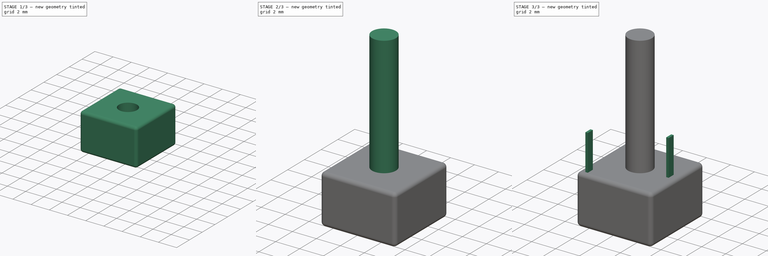
[diagram: build sequence overview — one tinted view per stage of 3, left to right]
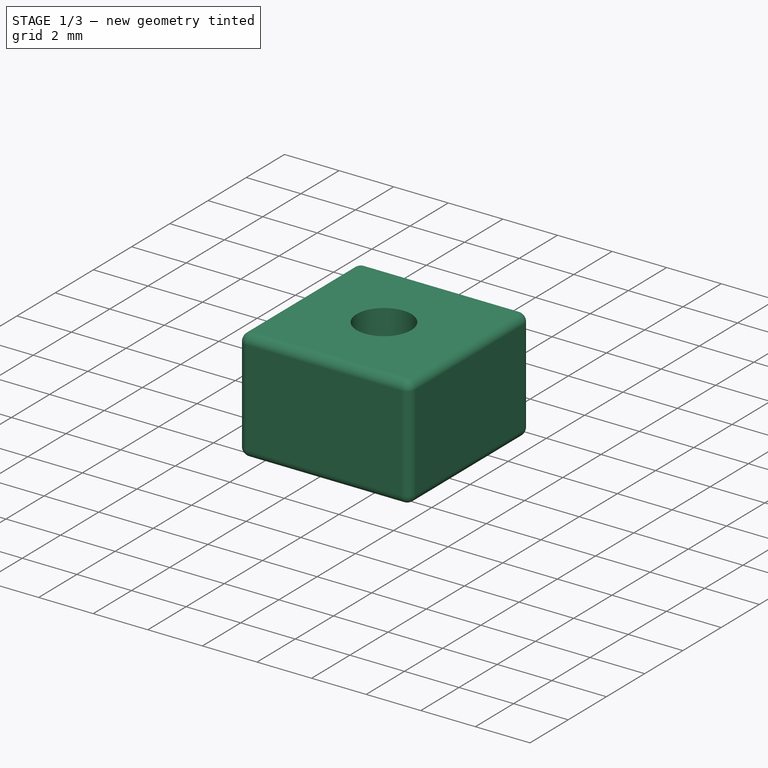
[diagram: stage 1 of 3 — iso view after this stage's code; geometry added in this stage tinted green]
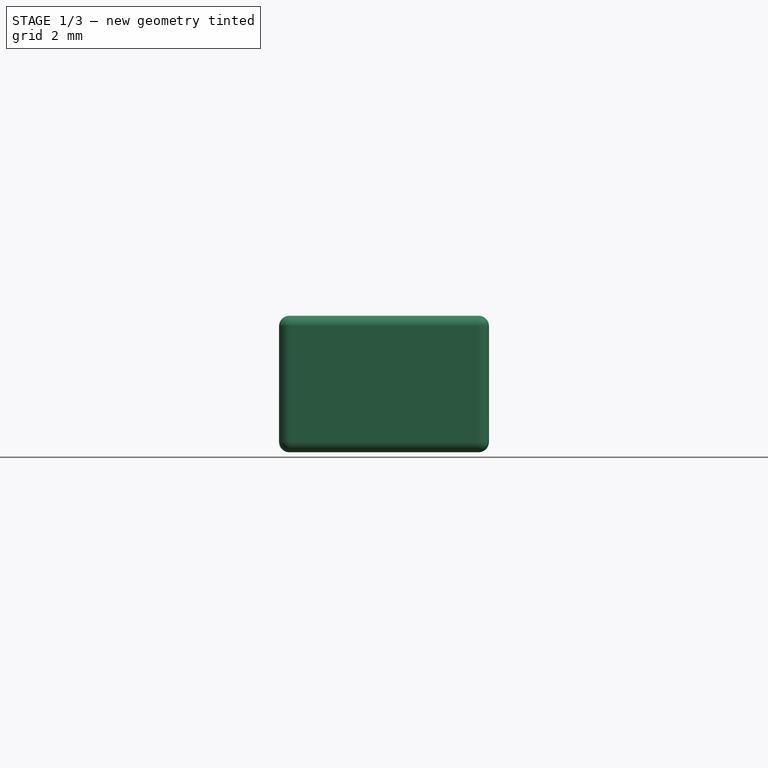
[diagram: stage 1 of 3 — front view after this stage's code; geometry added in this stage tinted green]
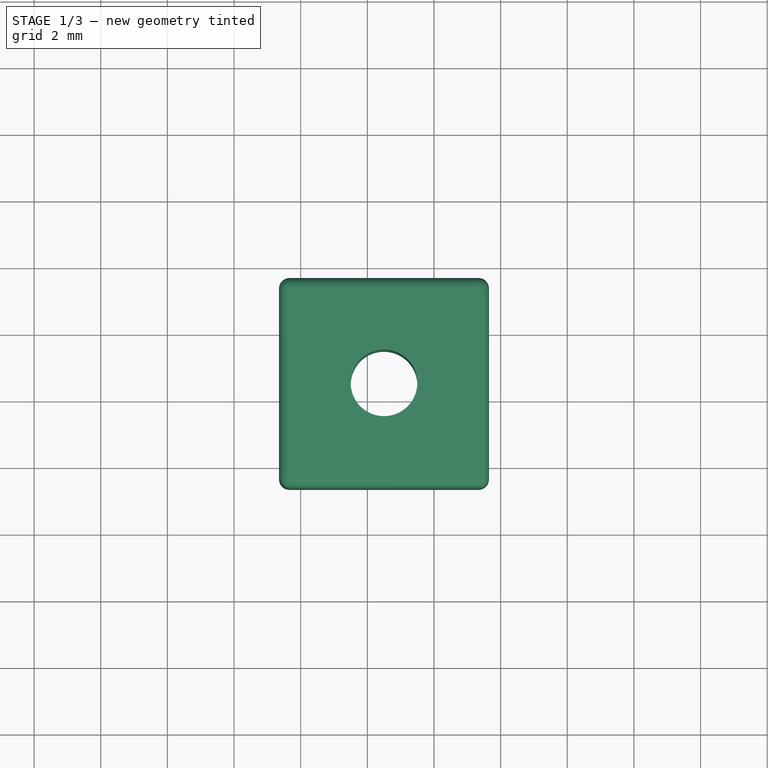
[diagram: stage 1 of 3 — top view after this stage's code; geometry added in this stage tinted green]
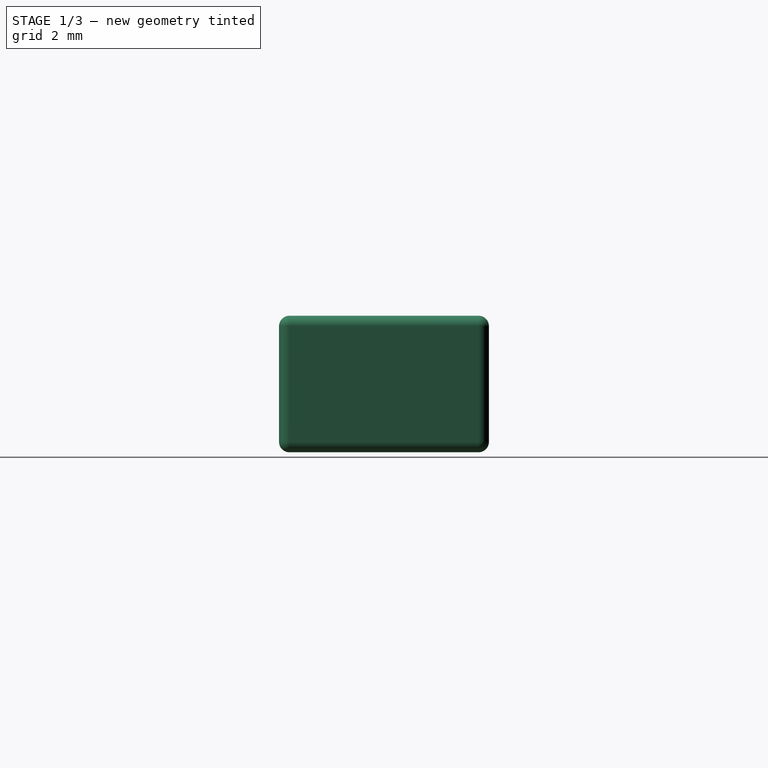
[diagram: stage 1 of 3 — right view after this stage's code; geometry added in this stage tinted green]
FCSTD DOCUMENT  (FreeCAD 0.16R6703 (Git))
Label: Potentiometer_Trimmer_ACP_CA6v_Horizontal_MountLS
License: All rights reserved
LicenseURL: http://en.wikipedia.org/wiki/All_rights_reserved
objects: Sketcher::SketchObject×4, PartDesign::Pad×4, Spreadsheet::Sheet×1, PartDesign::Fillet×1
note: 13 computed .brp shape members not serialized (recipe doc carries the construction recipe); baked Part::Feature solids carry a one-line shape summary decoded from their .brp

FEATURE [Sketcher::SketchObject] Sketch
  Placement = pos=(0,5,-2) rot=(0,0,1;0rad)
  expr: Constraints[15] = (Spreadsheet.hbody_fab - Spreadsheet.rmy * 2) / 2
  expr: Constraints[13] = Spreadsheet.wbody_fab
  expr: Placement.Base.z = -2
  expr: Placement.Base.y = 2 * Spreadsheet.rmy
  expr: Constraints[4] = Spreadsheet.rmy
  expr: Constraints[16] = (Spreadsheet.wbody_fab - Spreadsheet.rmx) / 2
  expr: Constraints[3] = Spreadsheet.clbody_fab
  expr: Constraints[14] = Spreadsheet.hbody_fab
  expr: Constraints[2] = Spreadsheet.dscrew / 2
  expr: Constraints[0] = Spreadsheet.cdbody_fab / 2
  sketch-geometry (6):
    g0: Circle [constr] CenterX=2.5 CenterY=-2.5 CenterZ=0 NormalX=0 NormalY=0 NormalZ=1 Radius=0
    g1: Circle CenterX=2.5 CenterY=-2.5 CenterZ=0 NormalX=0 NormalY=0 NormalZ=1 Radius=1
    g2: LineSegment StartX=-0.65 StartY=0.65 StartZ=0 EndX=5.65 EndY=0.65 EndZ=0
    g3: LineSegment StartX=5.65 StartY=0.65 StartZ=0 EndX=5.65 EndY=-5.65 EndZ=0
    g4: LineSegment StartX=5.65 StartY=-5.65 StartZ=0 EndX=-0.65 EndY=-5.65 EndZ=0
    g5: LineSegment StartX=-0.65 StartY=-5.65 StartZ=0 EndX=-0.65 EndY=0.65 EndZ=0
  constraints (17):
    c: Radius(g0) = 0
    c: Coincident(g1,g0)
    c: Radius(g1) = 1
    c: DistanceX(g-1,g0) = 2.5
    c: DistanceY(g0,g-1) = 2.5
    c: Coincident(g2,g3)
    c: Coincident(g3,g4)
    c: Coincident(g4,g5)
    c: Coincident(g5,g2)
    c: Horizontal(g2)
    c: Horizontal(g4)
    c: Vertical(g3)
    c: Vertical(g5)
    c: DistanceX(g2,g2) = 6.3
    c: DistanceY(g5,g5) = 6.3
    c: DistanceY(g-1,g2) = 0.65
    c: DistanceX(g2,g-1) = 0.65
FEATURE [PartDesign::Pad] Pad
  Length = 4.1
  Length2 = 100
  Placement = pos=(0,5,-2) rot=(0,0,1;0rad)
  Reversed = true
  Sketch = -> Sketch
  Type = 0
  expr: Length = Spreadsheet.height - 0.5
FEATURE [PartDesign::Fillet] Fillet
  Base = -> Pad [Edge9,Edge11,Edge3,Edge6,Edge2,Edge5,Edge8,Edge10,Edge7,Edge12,Edge4,Edge1]
  Placement = pos=(0,5,-2) rot=(0,0,1;0rad)
  Radius = 0.315
  expr: Radius = Spreadsheet.wbody_fab * 0.05
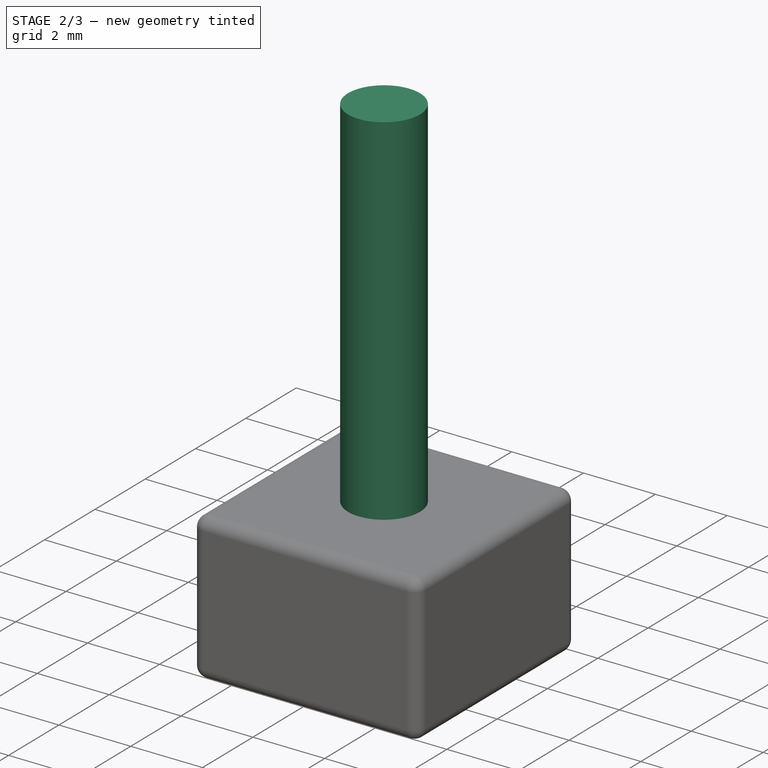
[diagram: stage 2 of 3 — iso view after this stage's code; geometry added in this stage tinted green]
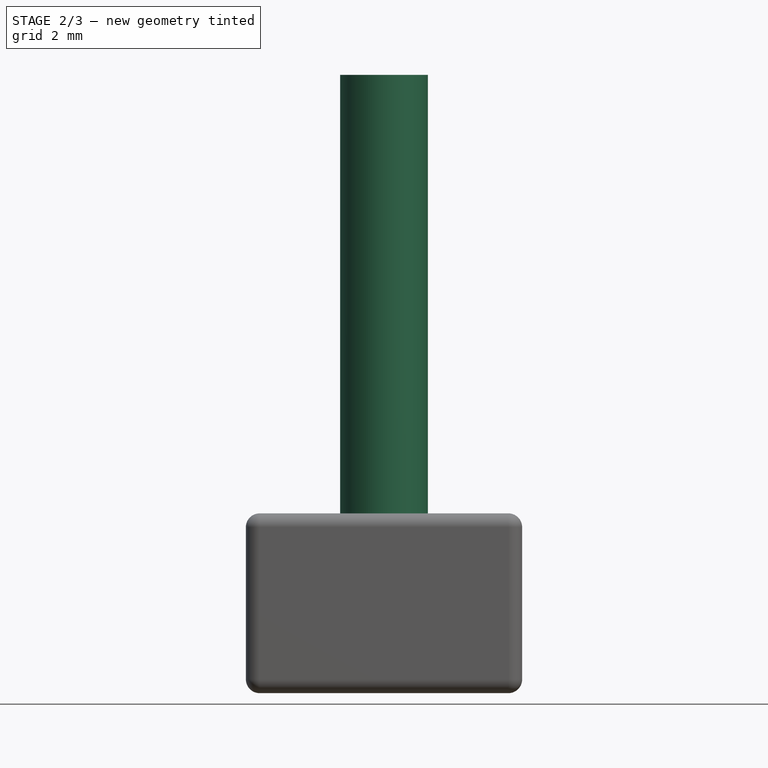
[diagram: stage 2 of 3 — front view after this stage's code; geometry added in this stage tinted green]
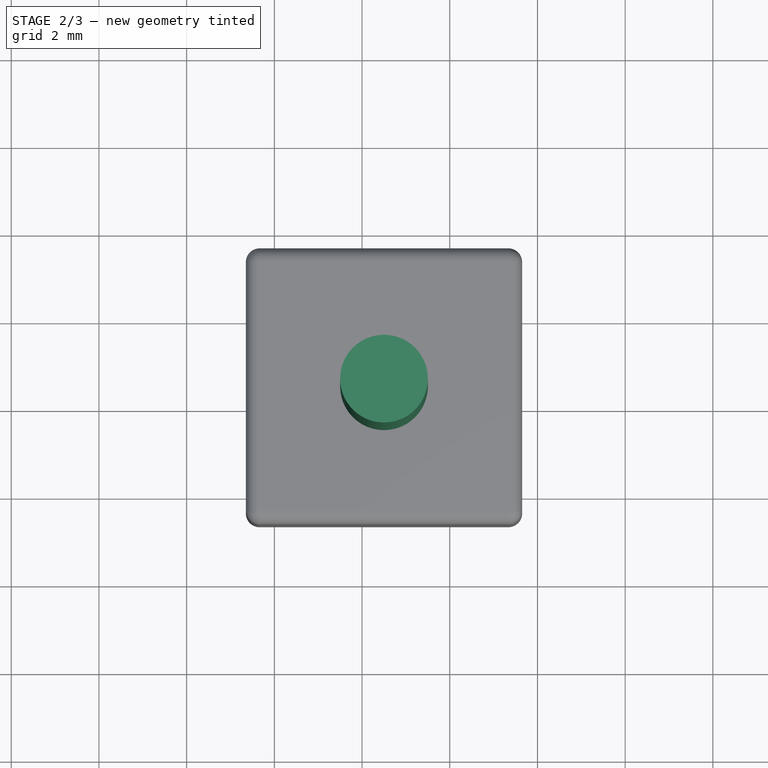
[diagram: stage 2 of 3 — top view after this stage's code; geometry added in this stage tinted green]
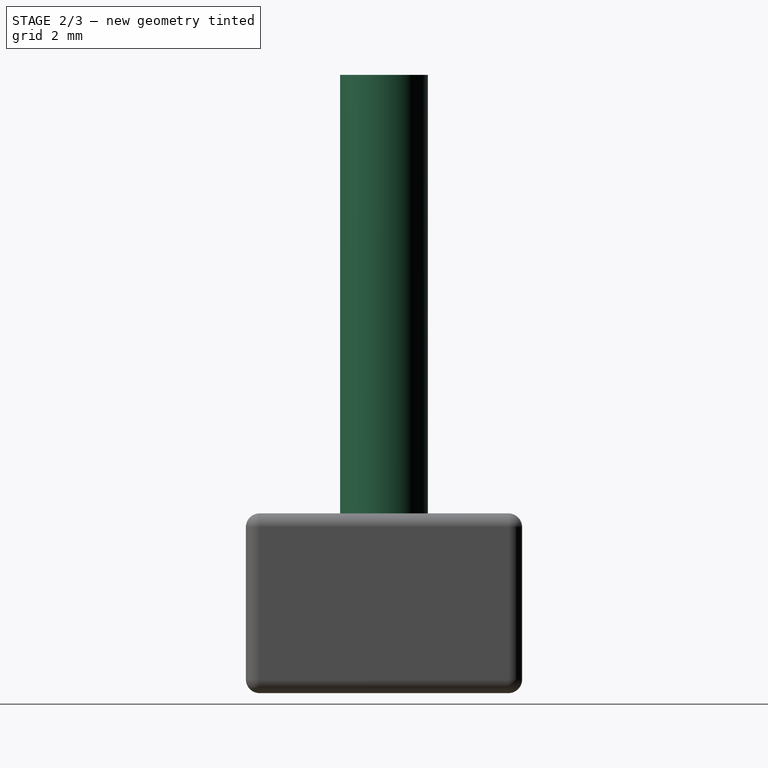
[diagram: stage 2 of 3 — right view after this stage's code; geometry added in this stage tinted green]
FEATURE [Sketcher::SketchObject] Sketch006
  Placement = pos=(0,5,-2) rot=(0,0,1;0rad)
  expr: Constraints[0] = Spreadsheet.dscrew / 2
  expr: Constraints[2] = Spreadsheet.clbody_fab
  expr: Constraints[1] = Spreadsheet.rmy
  expr: Placement.Base.y = 2 * Spreadsheet.rmy
  sketch-geometry (1):
    g0: Circle CenterX=2.5 CenterY=-2.5 CenterZ=0 NormalX=0 NormalY=0 NormalZ=1 Radius=1
  constraints (3):
    c: Radius(g0) = 1
    c: DistanceY(g0,g-1) = 2.5
    c: DistanceX(g-1,g0) = 2.5
FEATURE [PartDesign::Pad] Pad005
  Length = 10
  Length2 = 100
  Placement = pos=(0,5,-2) rot=(0,0,1;0rad)
  Sketch = -> Sketch006
  Type = 0
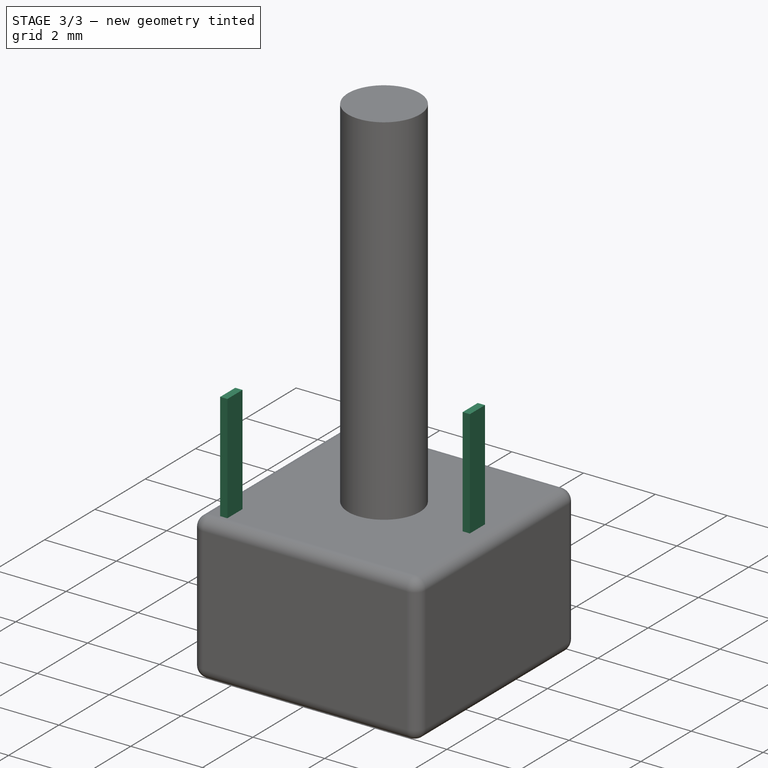
[diagram: stage 3 of 3 — iso view after this stage's code; geometry added in this stage tinted green]
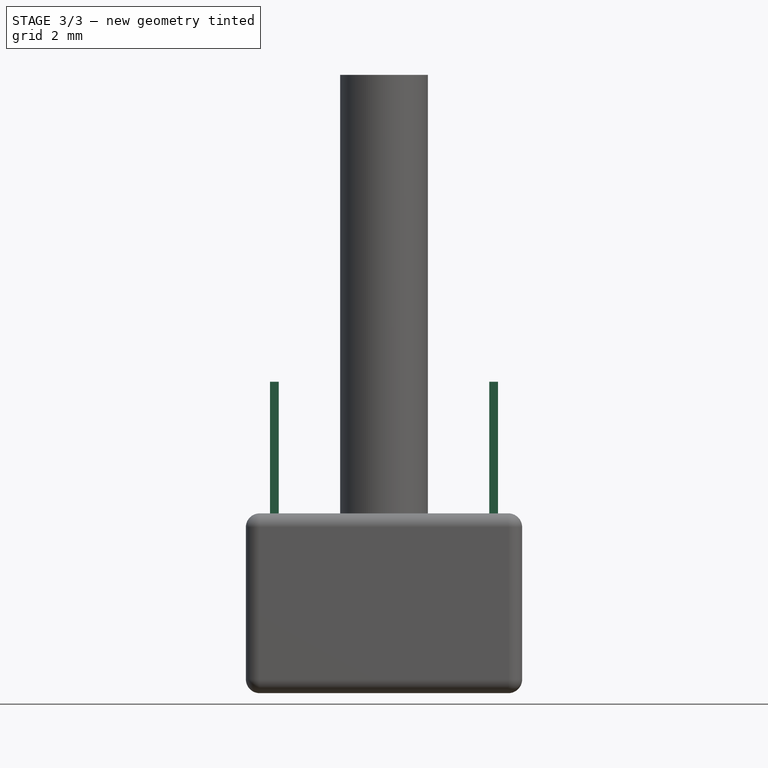
[diagram: stage 3 of 3 — front view after this stage's code; geometry added in this stage tinted green]
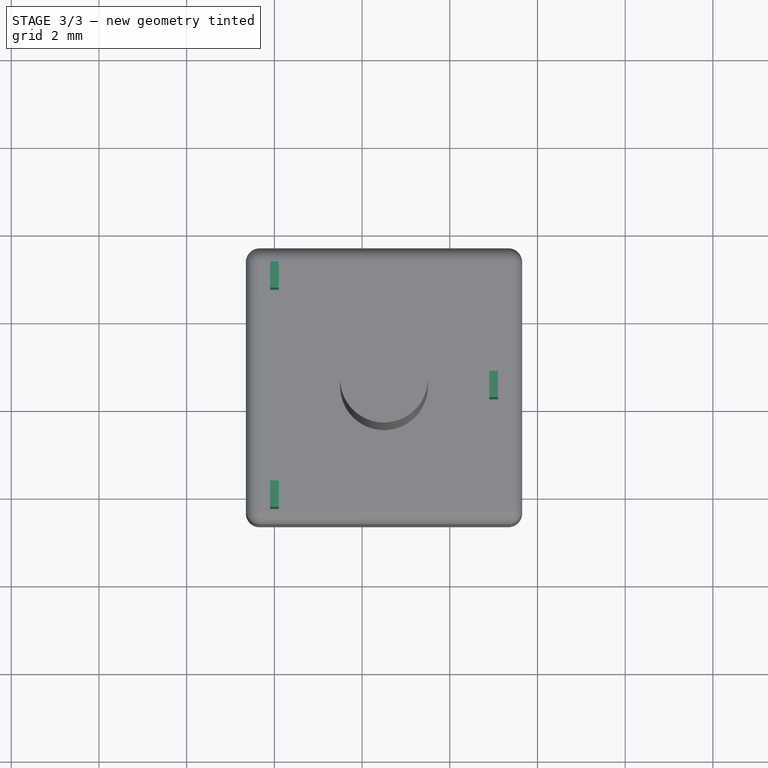
[diagram: stage 3 of 3 — top view after this stage's code; geometry added in this stage tinted green]
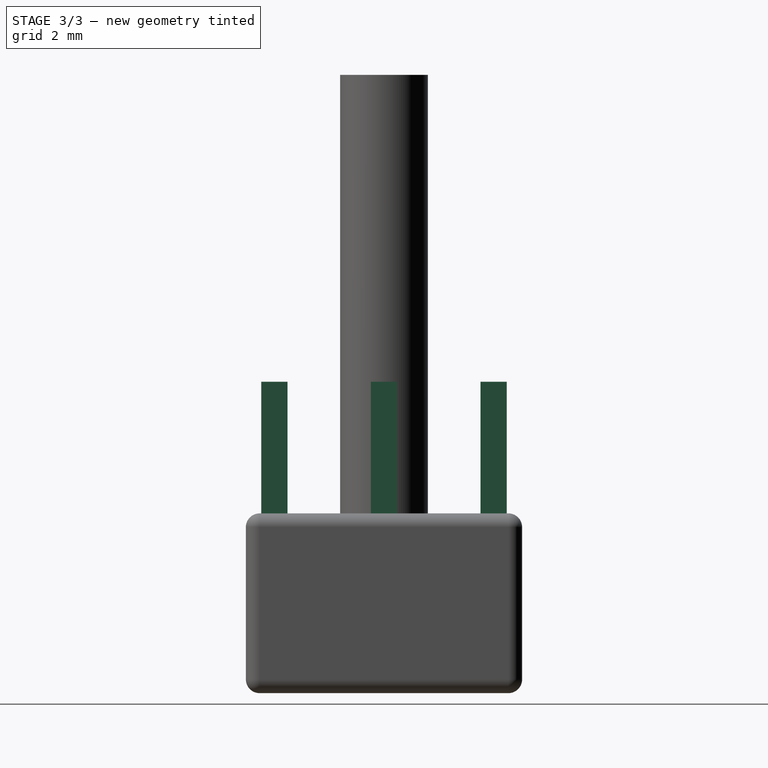
[diagram: stage 3 of 3 — right view after this stage's code; geometry added in this stage tinted green]
FEATURE [Spreadsheet::Sheet] Spreadsheet
  cells = A1=var lbody_fab = ; B1(lbody_fab)=-0.65; A2=var tbody_fab = ; B2(tbody_fab)=4.35; A3=var wbody_fab = ; B3(wbody_fab)=6.3; A4=var hbody_fab = ; B4(hbody_fab)=6.3; A5=var clbody_fab = ; B5(clbody_fab)=2.5; A6=var ctbody_fab = ; B6(ctbody_fab)=7.5; A7=var cdbody_fab = ; B7(cdbody_fab)=0; A8=var dscrew = ; B8(dscrew)=2; A9=var dshaft = ; B9(dshaft)=1.8; A10=var rmx = ; B10(rmx)=5; A11=var rmy = ; B11(rmy)=2.5; A12=var padx = ; B12(padx)=0; A13=var pady = ; B13(pady)=5; A14=var d_wire = ; B14(d_wire)=0.6000000000000001; A15=var height = ; B15(height)=4.6; A16=var mhpadx = ; B16(mhpadx)=2.5; A17=var mhpady = ; B17(mhpady)=2.5; A18=var mh_rmx = ; B18(mh_rmx)=0; A19=var mh_rmy = ; B19(mh_rmy)=15; A20=var offsetx = ; B20(offsetx)=0; A21=var offsety = ; B21(offsety)=-5
FEATURE [Sketcher::SketchObject] Sketch003
  Placement = pos=(0,5,0) rot=(0,0,1;0rad)
  expr: Constraints[23] = Spreadsheet.rmy
  expr: Constraints[22] = Spreadsheet.rmx
  expr: Constraints[35] = Spreadsheet.rmy * 2
  expr: Constraints[36] = Spreadsheet.rmy * 2
  expr: Constraints[24] = Spreadsheet.rmy
  expr: Constraints[8] = Spreadsheet.d_wire / 3
  expr: Placement.Base.y = 2 * Spreadsheet.rmy
  expr: Constraints[11] = Spreadsheet.d_wire / 2
  expr: Constraints[21] = Spreadsheet.rmx + Spreadsheet.d_wire / 3
  expr: Constraints[10] = Spreadsheet.d_wire / 6
  expr: Constraints[9] = Spreadsheet.d_wire
  sketch-geometry (13):
    g0: LineSegment StartX=-0.1 StartY=0.3 StartZ=0 EndX=0.1 EndY=0.3 EndZ=0
    g1: LineSegment StartX=0.1 StartY=0.3 StartZ=0 EndX=0.1 EndY=-0.3 EndZ=0
    g2: LineSegment StartX=0.1 StartY=-0.3 StartZ=0 EndX=-0.1 EndY=-0.3 EndZ=0
    g3: LineSegment StartX=-0.1 StartY=-0.3 StartZ=0 EndX=-0.1 EndY=0.3 EndZ=0
    g4: GeomPoint [constr] X=0 Y=0 Z=0
    g5: LineSegment StartX=5.1 StartY=-2.2 StartZ=0 EndX=4.9 EndY=-2.2 EndZ=0
    g6: LineSegment StartX=4.9 StartY=-2.2 StartZ=0 EndX=4.9 EndY=-2.8 EndZ=0
    g7: LineSegment StartX=4.9 StartY=-2.8 StartZ=0 EndX=5.1 EndY=-2.8 EndZ=0
    g8: LineSegment StartX=5.1 StartY=-2.8 StartZ=0 EndX=5.1 EndY=-2.2 EndZ=0
    g9: LineSegment StartX=-0.1 StartY=-4.7 StartZ=0 EndX=0.1 EndY=-4.7 EndZ=0
    g10: LineSegment StartX=0.1 StartY=-4.7 StartZ=0 EndX=0.1 EndY=-5.3 EndZ=0
    g11: LineSegment StartX=0.1 StartY=-5.3 StartZ=0 EndX=-0.1 EndY=-5.3 EndZ=0
    g12: LineSegment StartX=-0.1 StartY=-5.3 StartZ=0 EndX=-0.1 EndY=-4.7 EndZ=0
  constraints (37):
    c: Coincident(g0,g1)
    c: Coincident(g1,g2)
    c: Coincident(g2,g3)
    c: Coincident(g3,g0)
    c: Horizontal(g0)
    c: Horizontal(g2)
    c: Vertical(g1)
    c: Vertical(g3)
    c: DistanceX(g0,g0) = 0.2
    c: DistanceY(g3,g3) = 0.6
    c: DistanceX(g0,g4) = 0.1
    c: DistanceY(g2,g4) = 0.3
    c: Coincident(g5,g6)
    c: Coincident(g6,g7)
    c: Coincident(g7,g8)
    c: Coincident(g8,g5)
    c: Horizontal(g5)
    c: Horizontal(g7)
    c: Vertical(g6)
    c: Vertical(g8)
    c: Coincident(g4,g-1)
    c: DistanceX(g2,g5) = 5.2
    c: DistanceX(g2,g5) = 5
    c: DistanceY(g5,g0) = 2.5
    c: DistanceY(g7,g1) = 2.5
    c: Coincident(g9,g10)
    c: Coincident(g10,g11)
    c: Coincident(g11,g12)
    c: Coincident(g12,g9)
    c: Horizontal(g9)
    c: Horizontal(g11)
    c: Vertical(g10)
    c: Vertical(g12)
    c: DistanceX(g9,g2) = 0
    c: DistanceX(g1,g9) = 0
    c: DistanceY(g9,g0) = 5
    c: DistanceY(g11,g2) = 5
FEATURE [PartDesign::Pad] Pad002
  Length = 1
  Length2 = 4.3
  Placement = pos=(0,5,0) rot=(0,0,1;0rad)
  Sketch = -> Sketch003
  Type = 4
  expr: Length2 = 2 + Spreadsheet.height * 0.5
FEATURE [Sketcher::SketchObject] Sketch004
  Placement = pos=(0,5,-2) rot=(0,0,1;0rad)
  expr: Constraints[13] = Spreadsheet.dscrew * 0.1
  expr: Constraints[12] = Spreadsheet.dscrew * 0.2
  expr: Placement.Base.y = 2 * Spreadsheet.rmy
  expr: Constraints[11] = Spreadsheet.dscrew * 0.75
  expr: Constraints[0] = Spreadsheet.dscrew / 2
  expr: Constraints[14] = Spreadsheet.dscrew * 0.75 / 2
  expr: Constraints[2] = Spreadsheet.clbody_fab
  expr: Constraints[1] = Spreadsheet.rmy
  sketch-geometry (5):
    g0: Circle CenterX=2.5 CenterY=-2.5 CenterZ=0 NormalX=0 NormalY=0 NormalZ=1 Radius=1
    g1: LineSegment StartX=1.75 StartY=-2.3 StartZ=0 EndX=3.25 EndY=-2.3 EndZ=0
    g2: LineSegment StartX=3.25 StartY=-2.3 StartZ=0 EndX=3.25 EndY=-2.7 EndZ=0
    g3: LineSegment StartX=3.25 StartY=-2.7 StartZ=0 EndX=1.75 EndY=-2.7 EndZ=0
    g4: LineSegment StartX=1.75 StartY=-2.7 StartZ=0 EndX=1.75 EndY=-2.3 EndZ=0
  constraints (15):
    c: Radius(g0) = 1
    c: DistanceY(g0,g-1) = 2.5
    c: DistanceX(g-1,g0) = 2.5
    c: Coincident(g1,g2)
    c: Coincident(g2,g3)
    c: Coincident(g3,g4)
    c: Coincident(g4,g1)
    c: Horizontal(g1)
    c: Horizontal(g3)
    c: Vertical(g2)
    c: Vertical(g4)
    c: DistanceX(g1,g1) = 1.5
    c: DistanceY(g2,g2) = 0.4
    c: DistanceY(g0,g1) = 0.2
    c: DistanceX(g1,g0) = 0.75
FEATURE [PartDesign::Pad] Pad003
  Length = 4.1
  Length2 = 100
  Placement = pos=(0,5,-2) rot=(0,0,1;0rad)
  Reversed = true
  Sketch = -> Sketch004
  Type = 0
  expr: Length = Spreadsheet.height - 0.5
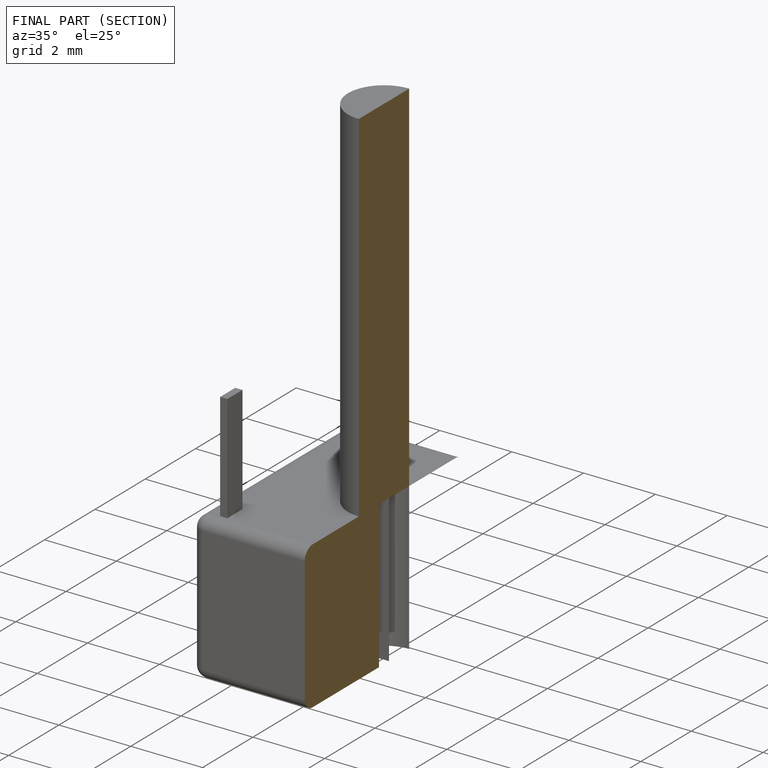
[diagram: finished part — half-section view (interior)]
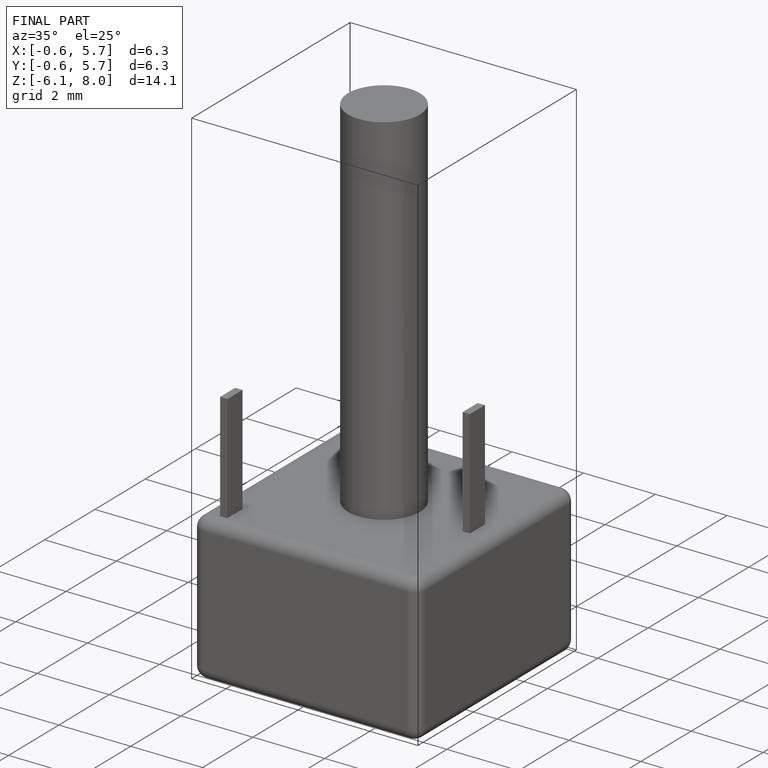
[diagram: finished part — iso view with bounding-box wireframe]
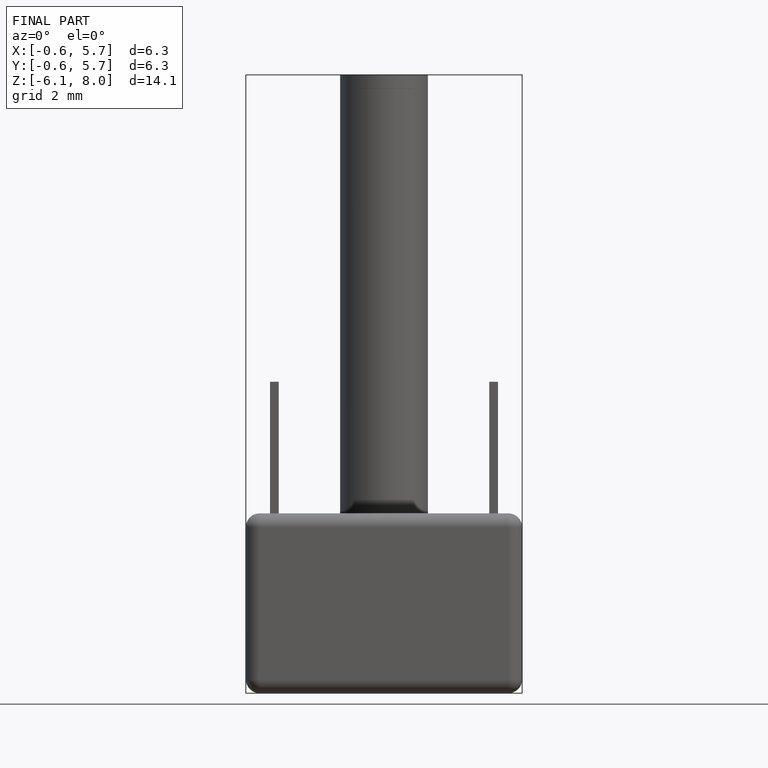
[diagram: finished part — front view with bounding-box wireframe]
